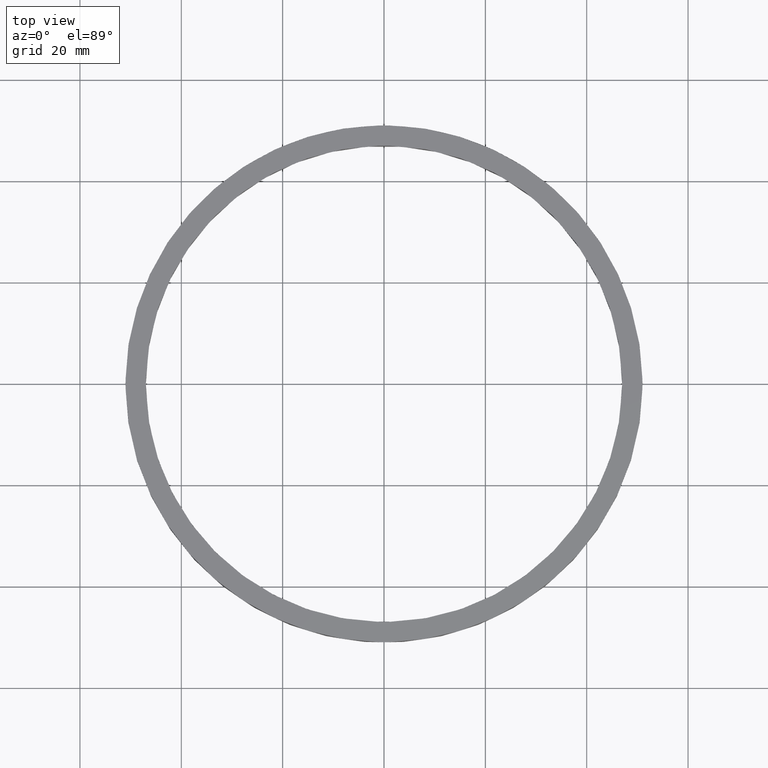
[diagram: clean part render]
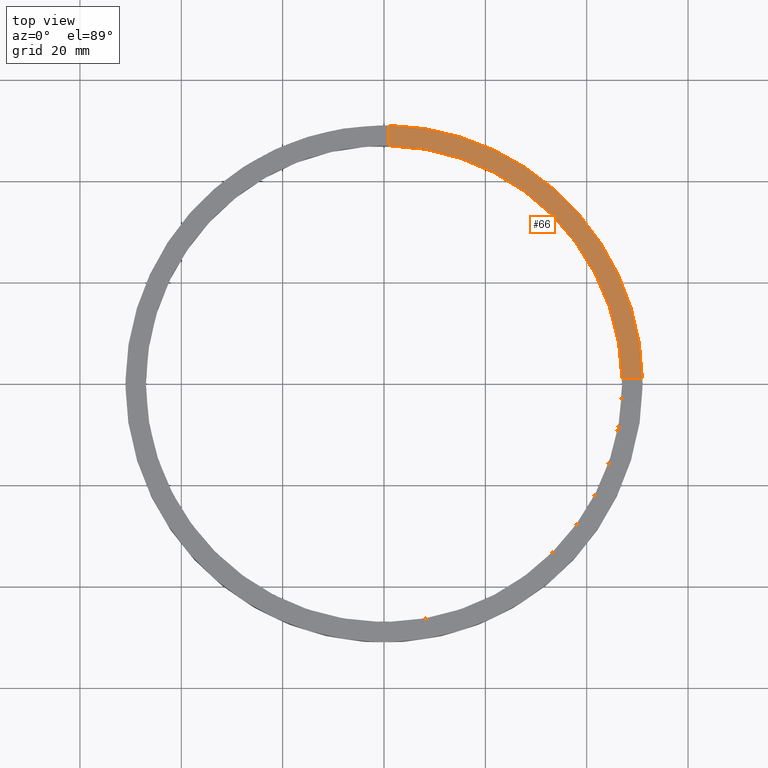
[diagram: same view with one face highlighted and labeled with its STEP entity id]
A machine part, top view. The second image highlights one B-rep face of the part: STEP entity #66.
In plain terms, the highlighted planar face has unit normal (0, 0, 1).
Its self-contained STEP definition (entity closure, byte-faithful):
#42 = AXIS2_PLACEMENT_3D ( 'NONE', #347, #624, #315 ) ;
#66 = ADVANCED_FACE ( 'NONE', ( #565 ), #673, .T. ) ;
#91 = CARTESIAN_POINT ( 'NONE',  ( 40.99999999999998579, 0.9999999999998443467, 5.000000000000000000 ) ) ;
#100 = EDGE_CURVE ( 'NONE', #161, #524, #310, .T. ) ;
#109 = CARTESIAN_POINT ( 'NONE',  ( 0.000000000000000000, 0.000000000000000000, 5.000000000000000000 ) ) ;
#112 = LINE ( 'NONE', #91, #629 ) ;
#161 = VERTEX_POINT ( 'NONE', #472 ) ;
#168 = ORIENTED_EDGE ( 'NONE', *, *, #709, .F. ) ;
#226 = DIRECTION ( 'NONE',  ( 1.000000000000000000, 0.000000000000000000, 0.000000000000000000 ) ) ;
#251 = EDGE_CURVE ( 'NONE', #698, #524, #352, .T. ) ;
#274 = DIRECTION ( 'NONE',  ( 0.000000000000000000, 0.000000000000000000, 1.000000000000000000 ) ) ;
#275 = ORIENTED_EDGE ( 'NONE', *, *, #726, .F. ) ;
#281 = CARTESIAN_POINT ( 'NONE',  ( 0.9999999999999731326, 50.99019513592784136, 5.000000000000000000 ) ) ;
#295 = VERTEX_POINT ( 'NONE', #418 ) ;
#307 = VECTOR ( 'NONE', #533, 1000.000000000000000 ) ;
#310 = LINE ( 'NONE', #467, #307 ) ;
#315 = DIRECTION ( 'NONE',  ( 1.000000000000000000, 0.000000000000000000, 0.000000000000000000 ) ) ;
#347 = CARTESIAN_POINT ( 'NONE',  ( 0.000000000000000000, 0.000000000000000000, 5.000000000000000000 ) ) ;
#352 = CIRCLE ( 'NONE', #735, 51.00000000000000000 ) ;
#364 = CIRCLE ( 'NONE', #42, 47.00000000000000711 ) ;
#395 = ORIENTED_EDGE ( 'NONE', *, *, #251, .T. ) ;
#418 = CARTESIAN_POINT ( 'NONE',  ( 46.98936049788292735, 0.9999999999998447908, 5.000000000000000000 ) ) ;
#462 = CARTESIAN_POINT ( 'NONE',  ( 50.99019513592784847, 0.9999999999998450129, 5.000000000000000000 ) ) ;
#467 = CARTESIAN_POINT ( 'NONE',  ( 0.9999999999999731326, 40.99999999999999289, 5.000000000000000000 ) ) ;
#472 = CARTESIAN_POINT ( 'NONE',  ( 0.9999999999999731326, 46.98936049788292024, 5.000000000000000000 ) ) ;
#524 = VERTEX_POINT ( 'NONE', #281 ) ;
#533 = DIRECTION ( 'NONE',  ( 0.000000000000000000, 1.000000000000000000, 0.000000000000000000 ) ) ;
#565 = FACE_OUTER_BOUND ( 'NONE', #692, .T. ) ;
#624 = DIRECTION ( 'NONE',  ( 0.000000000000000000, 0.000000000000000000, 1.000000000000000000 ) ) ;
#629 = VECTOR ( 'NONE', #743, 1000.000000000000000 ) ;
#657 = ORIENTED_EDGE ( 'NONE', *, *, #100, .F. ) ;
#673 = PLANE ( 'NONE',  #746 ) ;
#692 = EDGE_LOOP ( 'NONE', ( #657, #168, #275, #395 ) ) ;
#698 = VERTEX_POINT ( 'NONE', #462 ) ;
#706 = DIRECTION ( 'NONE',  ( 0.000000000000000000, 0.000000000000000000, 1.000000000000000000 ) ) ;
#709 = EDGE_CURVE ( 'NONE', #295, #161, #364, .T. ) ;
#726 = EDGE_CURVE ( 'NONE', #698, #295, #112, .T. ) ;
#735 = AXIS2_PLACEMENT_3D ( 'NONE', #750, #706, #226 ) ;
#743 = DIRECTION ( 'NONE',  ( -1.000000000000000000, -6.505213034913025371E-17, -0.000000000000000000 ) ) ;
#746 = AXIS2_PLACEMENT_3D ( 'NONE', #109, #274, #764 ) ;
#750 = CARTESIAN_POINT ( 'NONE',  ( 0.000000000000000000, 0.000000000000000000, 5.000000000000000000 ) ) ;
#764 = DIRECTION ( 'NONE',  ( 1.000000000000000000, 0.000000000000000000, -0.000000000000000000 ) ) ;